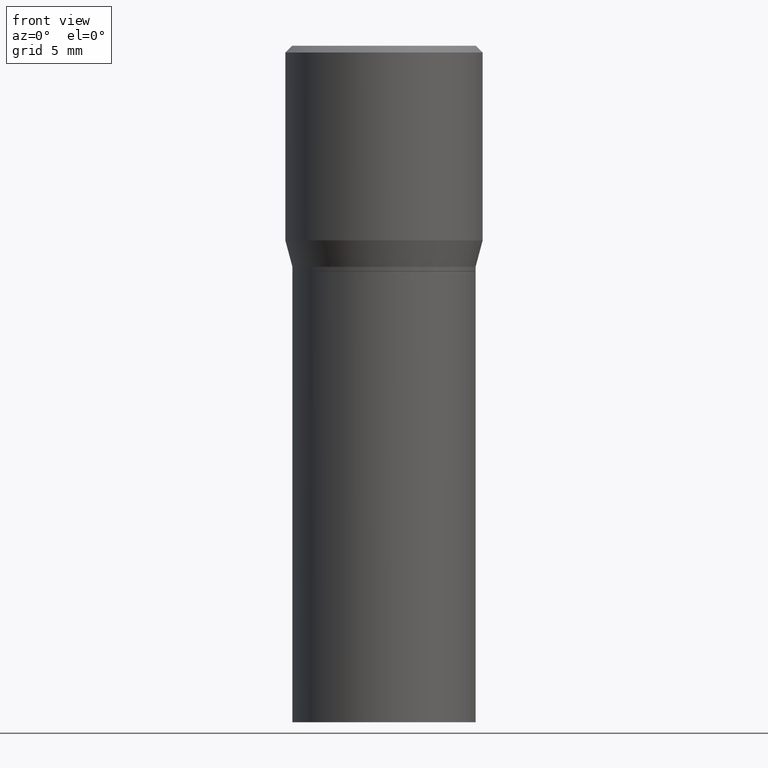
[diagram: clean part render]
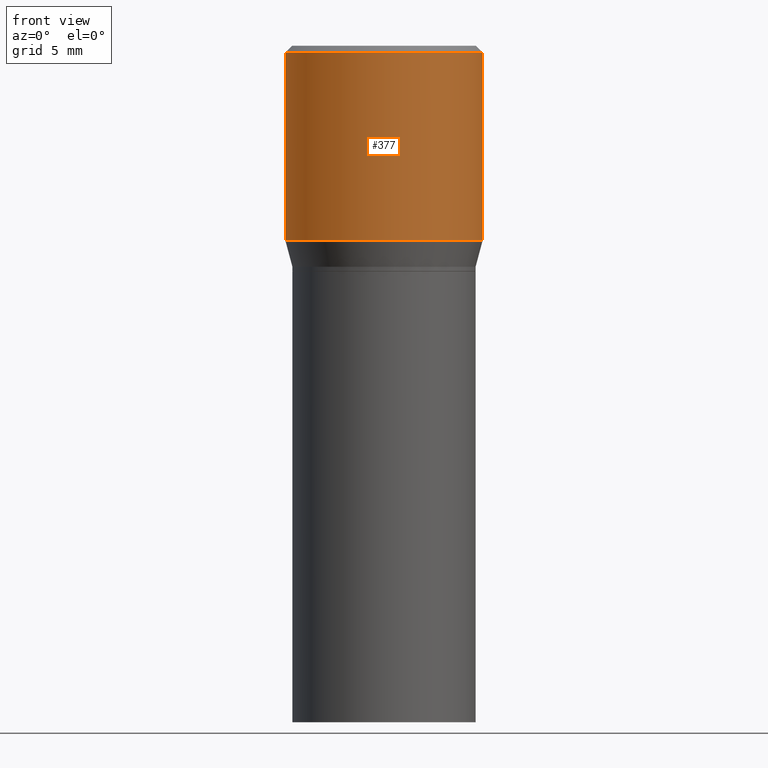
[diagram: same view with one face highlighted and labeled with its STEP entity id]
A machine part, front view. The second image highlights one B-rep face of the part: STEP entity #377.
In plain terms, the highlighted cylindrical surface (partial cylindrical patch) has radius 5.5562 mm, axis along (-0, 0, 1).
Its self-contained STEP definition (entity closure, byte-faithful):
#21 = AXIS2_PLACEMENT_3D ( 'NONE', #198, #110, #122 ) ;
#28 = CARTESIAN_POINT ( 'NONE',  ( -0.2187500000000000000, 4.741191543335144142E-17, -0.4315934048615475138 ) ) ;
#42 = ORIENTED_EDGE ( 'NONE', *, *, #63, .T. ) ;
#63 = EDGE_CURVE ( 'NONE', #151, #363, #308, .T. ) ;
#64 = CARTESIAN_POINT ( 'NONE',  ( -0.2187500000000000000, 1.554312234475219157E-15, -1.076017050993260622E-29 ) ) ;
#68 = DIRECTION ( 'NONE',  ( 1.000000000000000000, -6.982962677686266711E-15, 0.000000000000000000 ) ) ;
#110 = DIRECTION ( 'NONE',  ( -2.445468806185136597E-29, 3.491481338843145583E-15, 1.000000000000000000 ) ) ;
#115 = FACE_OUTER_BOUND ( 'NONE', #395, .T. ) ;
#122 = DIRECTION ( 'NONE',  ( 1.000000000000000000, -6.982962677686265133E-15, 0.000000000000000000 ) ) ;
#137 = CARTESIAN_POINT ( 'NONE',  ( 0.2187500000000000000, -3.034423404785738170E-15, -0.4315934048615475138 ) ) ;
#151 = VERTEX_POINT ( 'NONE', #137 ) ;
#152 = ORIENTED_EDGE ( 'NONE', *, *, #319, .T. ) ;
#198 = CARTESIAN_POINT ( 'NONE',  ( 1.055448208544146876E-29, -1.506900319041867721E-15, -0.4315934048615475138 ) ) ;
#202 = ORIENTED_EDGE ( 'NONE', *, *, #231, .F. ) ;
#205 = CARTESIAN_POINT ( 'NONE',  ( 0.2187500000000000000, -1.527523085743870843E-15, 1.066663669705360885E-29 ) ) ;
#211 = VERTEX_POINT ( 'NONE', #258 ) ;
#215 = VECTOR ( 'NONE', #341, 39.37007874015748143 ) ;
#218 = DIRECTION ( 'NONE',  ( -2.445468806185136877E-29, 3.491481338843145188E-15, 1.000000000000000000 ) ) ;
#220 = CARTESIAN_POINT ( 'NONE',  ( 3.668203209277705088E-31, -5.237222008264718399E-17, -0.01499999999999999944 ) ) ;
#223 = VERTEX_POINT ( 'NONE', #28 ) ;
#231 = EDGE_CURVE ( 'NONE', #211, #363, #440, .T. ) ;
#250 = VECTOR ( 'NONE', #218, 39.37007874015748143 ) ;
#252 = EDGE_CURVE ( 'NONE', #223, #211, #359, .T. ) ;
#258 = CARTESIAN_POINT ( 'NONE',  ( -0.2187500000000000000, 7.746759649129616577E-16, -0.01499999999999999944 ) ) ;
#267 = CYLINDRICAL_SURFACE ( 'NONE', #420, 0.2187500000000000000 ) ;
#276 = AXIS2_PLACEMENT_3D ( 'NONE', #220, #393, #68 ) ;
#283 = DIRECTION ( 'NONE',  ( 1.000000000000000000, -6.982962677686266711E-15, 4.876176775795935232E-29 ) ) ;
#308 = LINE ( 'NONE', #205, #215 ) ;
#312 = CIRCLE ( 'NONE', #21, 0.2187500000000000000 ) ;
#319 = EDGE_CURVE ( 'NONE', #223, #151, #312, .T. ) ;
#321 = ORIENTED_EDGE ( 'NONE', *, *, #252, .F. ) ;
#341 = DIRECTION ( 'NONE',  ( -2.445468806185136877E-29, 3.491481338843145188E-15, 1.000000000000000000 ) ) ;
#359 = LINE ( 'NONE', #64, #250 ) ;
#363 = VERTEX_POINT ( 'NONE', #462 ) ;
#377 = ADVANCED_FACE ( 'NONE', ( #115 ), #267, .T. ) ;
#393 = DIRECTION ( 'NONE',  ( -2.445468806185136597E-29, 3.491481338843145583E-15, 1.000000000000000000 ) ) ;
#395 = EDGE_LOOP ( 'NONE', ( #321, #152, #42, #202 ) ) ;
#410 = DIRECTION ( 'NONE',  ( -2.445468806185136597E-29, 3.491481338843145583E-15, 1.000000000000000000 ) ) ;
#420 = AXIS2_PLACEMENT_3D ( 'NONE', #455, #410, #283 ) ;
#440 = CIRCLE ( 'NONE', #276, 0.2187500000000000000 ) ;
#455 = CARTESIAN_POINT ( 'NONE',  ( 0.000000000000000000, 0.000000000000000000, 0.000000000000000000 ) ) ;
#462 = CARTESIAN_POINT ( 'NONE',  ( 0.2187500000000000000, -1.579895305826517922E-15, -0.01499999999999999944 ) ) ;